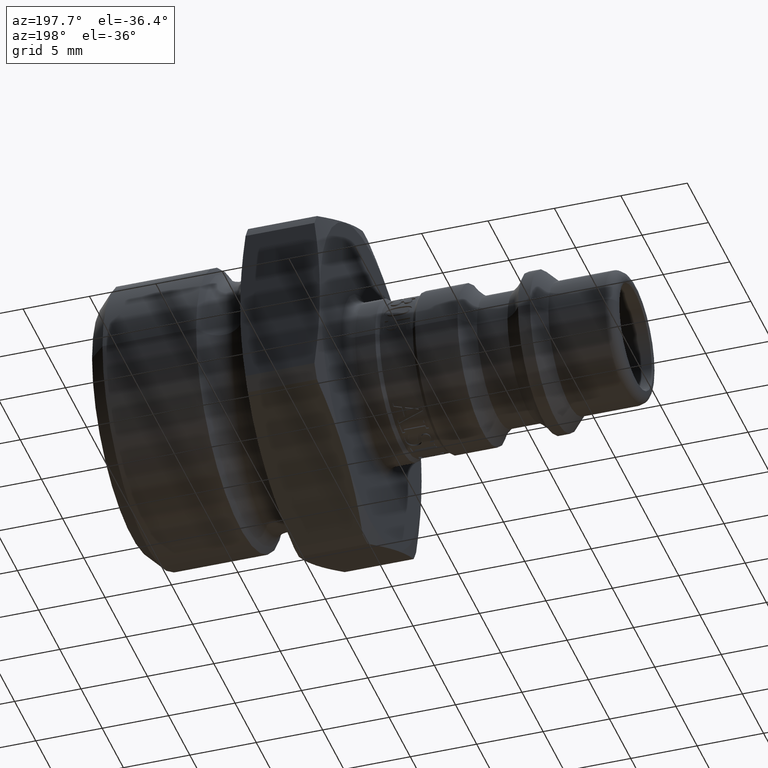
[diagram: clean part render]
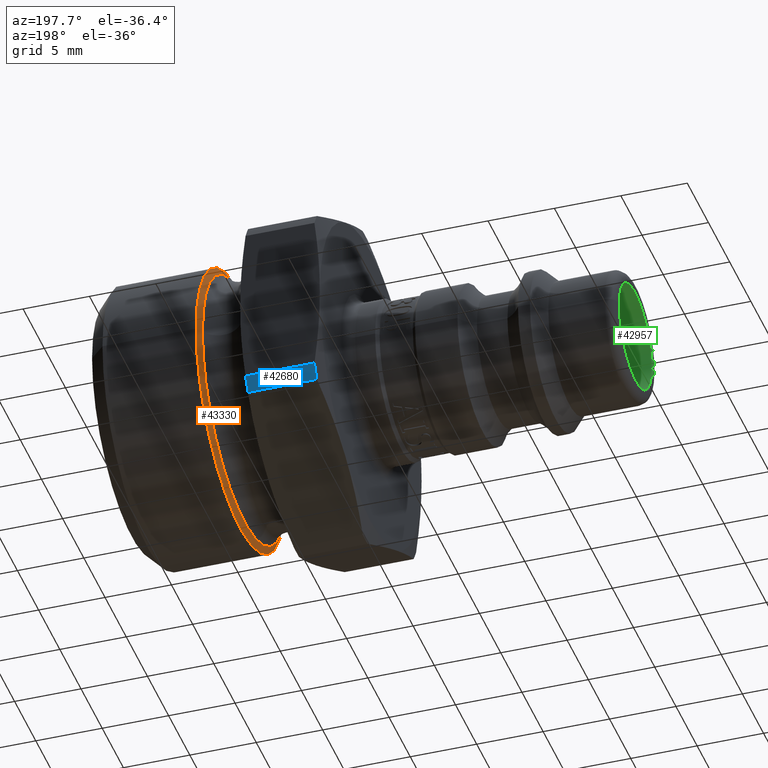
[diagram: same view with three faces highlighted in distinct colors, each labeled with its STEP entity id]
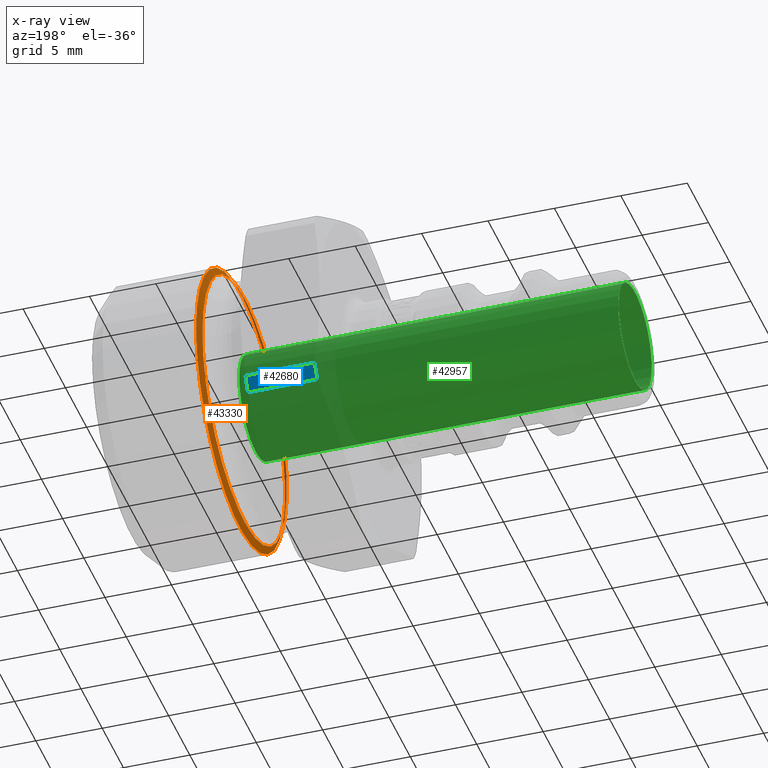
[diagram: x-ray of the same camera — body ghosted, the three highlighted faces saturated]
A machine part, auxiliary view with three faces highlighted in distinct colors.
The next image is the same camera in x-ray (body ghosted, the three faces saturated) — at least one of them is partly hidden behind the body in this view.
Their STEP definitions:

[orange] entity #43330 — the highlighted conical surface has half-angle 60 deg.
#42027=CARTESIAN_POINT('',(29.800000000000001,10.477499999999999,0.0));
#42028=VERTEX_POINT('',#42027);
#42029=CARTESIAN_POINT('',(29.800000000000001,0.0,0.0));
#42030=DIRECTION('',(1.0,0.0,0.0));
#42031=DIRECTION('',(0.0,1.0,0.0));
#42032=AXIS2_PLACEMENT_3D('',#42029,#42030,#42031);
#42033=CIRCLE('',#42032,10.477499999999999);
#42034=EDGE_CURVE('',#42028,#42028,#42033,.T.);
#43304=CARTESIAN_POINT('',(29.494593375741374,9.948520209815966,0.0));
#43305=VERTEX_POINT('',#43304);
#43306=CARTESIAN_POINT('',(29.494593375741374,0.0,0.0));
#43307=DIRECTION('',(1.0,0.0,0.0));
#43308=DIRECTION('',(0.0,1.0,0.0));
#43309=AXIS2_PLACEMENT_3D('',#43306,#43307,#43308);
#43310=CIRCLE('',#43309,9.948520209815966);
#43311=EDGE_CURVE('',#43305,#43305,#43310,.T.);
#43319=CARTESIAN_POINT('',(29.647296687870686,0.0,0.0));
#43320=DIRECTION('',(1.0,0.0,0.0));
#43321=DIRECTION('',(0.0,1.0,0.0));
#43322=AXIS2_PLACEMENT_3D('',#43319,#43320,#43321);
#43323=CONICAL_SURFACE('',#43322,10.213010104907983,59.999999999999957);
#43324=ORIENTED_EDGE('',*,*,#42034,.F.);
#43325=EDGE_LOOP('',(#43324));
#43326=FACE_OUTER_BOUND('',#43325,.T.);
#43327=ORIENTED_EDGE('',*,*,#43311,.T.);
#43328=EDGE_LOOP('',(#43327));
#43329=FACE_BOUND('',#43328,.T.);
#43330=ADVANCED_FACE('',(#43326,#43329),#43323,.T.);

[blue] entity #42680 — the highlighted cylindrical surface (partial cylindrical patch) has radius 13.525 mm, axis along (1, 0, 0).
#42067=CARTESIAN_POINT('',(20.408622518457467,11.403167473806439,-7.272784649934499));
#42068=VERTEX_POINT('',#42067);
#42084=CARTESIAN_POINT('',(25.591377481542537,11.403167473806439,-7.272784649934499));
#42085=VERTEX_POINT('',#42084);
#42086=CARTESIAN_POINT('',(25.591377481542541,11.403167473806439,-7.272784649934499));
#42087=DIRECTION('',(-1.0,0.0,0.0));
#42088=VECTOR('',#42087,5.18275496308507);
#42089=LINE('',#42086,#42088);
#42090=EDGE_CURVE('',#42085,#42068,#42089,.T.);
#42600=CARTESIAN_POINT('',(25.591377481542537,12.000000000000002,-6.239040390957568));
#42601=VERTEX_POINT('',#42600);
#42602=CARTESIAN_POINT('',(25.591377481542537,0.0,0.0));
#42603=DIRECTION('',(1.0,0.0,0.0));
#42604=DIRECTION('',(0.0,1.0,0.0));
#42605=AXIS2_PLACEMENT_3D('',#42602,#42603,#42604);
#42606=CIRCLE('',#42605,13.525);
#42607=EDGE_CURVE('',#42085,#42601,#42606,.T.);
#42656=CARTESIAN_POINT('',(23.0,0.0,0.0));
#42657=DIRECTION('',(1.0,0.0,0.0));
#42658=DIRECTION('',(0.0,1.0,0.0));
#42659=AXIS2_PLACEMENT_3D('',#42656,#42657,#42658);
#42660=CYLINDRICAL_SURFACE('',#42659,13.525);
#42661=ORIENTED_EDGE('',*,*,#42090,.T.);
#42662=CARTESIAN_POINT('',(20.408622518457467,12.000000000000002,-6.239040390957568));
#42663=VERTEX_POINT('',#42662);
#42664=CARTESIAN_POINT('',(20.408622518457463,0.0,0.0));
#42665=DIRECTION('',(1.0,0.0,0.0));
#42666=DIRECTION('',(0.0,1.0,0.0));
#42667=AXIS2_PLACEMENT_3D('',#42664,#42665,#42666);
#42668=CIRCLE('',#42667,13.525);
#42669=EDGE_CURVE('',#42068,#42663,#42668,.T.);
#42670=ORIENTED_EDGE('',*,*,#42669,.T.);
#42671=CARTESIAN_POINT('',(20.40862251845747,12.000000000000002,-6.239040390957568));
#42672=DIRECTION('',(1.0,0.0,0.0));
#42673=VECTOR('',#42672,5.18275496308507);
#42674=LINE('',#42671,#42673);
#42675=EDGE_CURVE('',#42663,#42601,#42674,.T.);
#42676=ORIENTED_EDGE('',*,*,#42675,.T.);
#42677=ORIENTED_EDGE('',*,*,#42607,.F.);
#42678=EDGE_LOOP('',(#42661,#42670,#42676,#42677));
#42679=FACE_OUTER_BOUND('',#42678,.T.);
#42680=ADVANCED_FACE('',(#42679),#42660,.T.);

[green] entity #42957 — the highlighted cylindrical surface (bore or boss wall) has radius 3.925 mm, axis along (1, 0, 0).
#42895=CARTESIAN_POINT('',(0.099999999999998,3.925,4.806739E-016));
#42896=VERTEX_POINT('',#42895);
#42897=CARTESIAN_POINT('',(0.099999999999998,0.0,0.0));
#42898=DIRECTION('',(1.0,0.0,0.0));
#42899=DIRECTION('',(0.0,-1.0,0.0));
#42900=AXIS2_PLACEMENT_3D('',#42897,#42898,#42899);
#42901=CIRCLE('',#42900,3.925);
#42902=EDGE_CURVE('',#42896,#42896,#42901,.T.);
#42938=CARTESIAN_POINT('',(14.322461222902144,0.0,0.0));
#42939=DIRECTION('',(1.0,0.0,0.0));
#42940=DIRECTION('',(0.0,1.0,0.0));
#42941=AXIS2_PLACEMENT_3D('',#42938,#42939,#42940);
#42942=CYLINDRICAL_SURFACE('',#42941,3.925);
#42943=CARTESIAN_POINT('',(28.644922445804287,3.925000000000002,0.0));
#42944=VERTEX_POINT('',#42943);
#42945=CARTESIAN_POINT('',(28.644922445804287,0.0,0.0));
#42946=DIRECTION('',(1.0,0.0,0.0));
#42947=DIRECTION('',(0.0,1.0,0.0));
#42948=AXIS2_PLACEMENT_3D('',#42945,#42946,#42947);
#42949=CIRCLE('',#42948,3.925000000000002);
#42950=EDGE_CURVE('',#42944,#42944,#42949,.T.);
#42951=ORIENTED_EDGE('',*,*,#42950,.T.);
#42952=EDGE_LOOP('',(#42951));
#42953=FACE_OUTER_BOUND('',#42952,.T.);
#42954=ORIENTED_EDGE('',*,*,#42902,.F.);
#42955=EDGE_LOOP('',(#42954));
#42956=FACE_BOUND('',#42955,.T.);
#42957=ADVANCED_FACE('',(#42953,#42956),#42942,.F.);